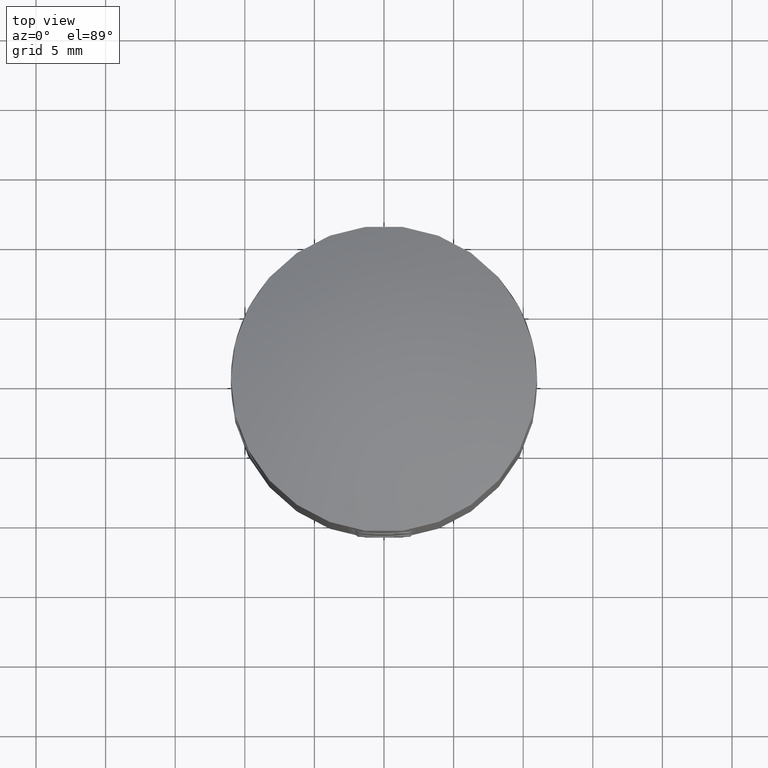
[diagram: clean part render]
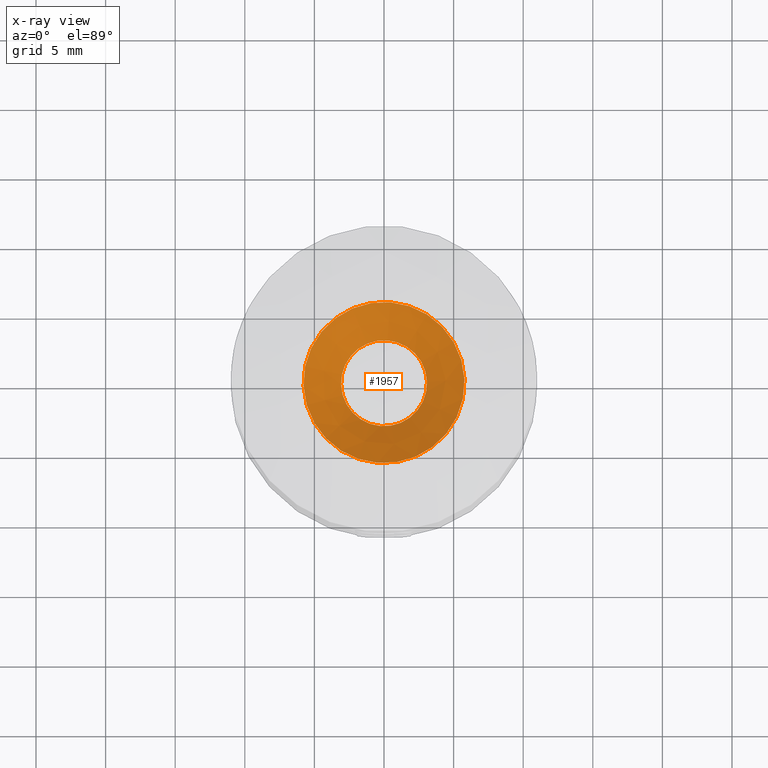
[diagram: x-ray — body ghosted, one internal face saturated and labeled with its STEP entity id]
A machine part, top view, then the same camera in x-ray: the body is ghosted and one INTERNAL B-rep face — a face not visible from any outside direction — is saturated and labeled: STEP entity #1957.
In plain terms, the highlighted conical surface has half-angle 45 deg.
Its self-contained STEP definition (entity closure, byte-faithful):
#702 = DIRECTION ( 'NONE',  ( -1.000000000000000000, -0.0000000000000000000, -0.0000000000000000000 ) ) ;
#1702 = CARTESIAN_POINT ( 'NONE',  ( 0.5150000000000132200, 0.0000000000000000000, 5.785000000000000100 ) ) ;
#1957 = ADVANCED_FACE ( 'NONE', ( #15843, #20037 ), #13238, .T. ) ;
#2323 = DIRECTION ( 'NONE',  ( -1.000000000000000000, -0.0000000000000000000, -0.0000000000000000000 ) ) ;
#3271 = AXIS2_PLACEMENT_3D ( 'NONE', #7138, #20512, #13936 ) ;
#4988 = CARTESIAN_POINT ( 'NONE',  ( 3.212132034355964700, 0.0000000000000000000, 3.087867965644036400 ) ) ;
#5001 = VERTEX_POINT ( 'NONE', #4988 ) ;
#5769 = VERTEX_POINT ( 'NONE', #1702 ) ;
#5963 = ORIENTED_EDGE ( 'NONE', *, *, #14712, .F. ) ;
#7138 = CARTESIAN_POINT ( 'NONE',  ( 3.212132034355964700, 0.0000000000000000000, 0.0000000000000000000 ) ) ;
#7231 = DIRECTION ( 'NONE',  ( 0.0000000000000000000, 0.0000000000000000000, 1.000000000000000000 ) ) ;
#10576 = DIRECTION ( 'NONE',  ( 0.0000000000000000000, 0.0000000000000000000, 1.000000000000000000 ) ) ;
#11580 = ORIENTED_EDGE ( 'NONE', *, *, #13439, .T. ) ;
#12010 = EDGE_LOOP ( 'NONE', ( #5963 ) ) ;
#12272 = CARTESIAN_POINT ( 'NONE',  ( 0.5150000000000132200, 0.0000000000000000000, 0.0000000000000000000 ) ) ;
#13238 = CONICAL_SURFACE ( 'NONE', #20281, 5.785000000000000100, 0.7853981633974503900 ) ;
#13439 = EDGE_CURVE ( 'NONE', #5001, #5001, #17963, .T. ) ;
#13936 = DIRECTION ( 'NONE',  ( 0.0000000000000000000, 0.0000000000000000000, 1.000000000000000000 ) ) ;
#13955 = CARTESIAN_POINT ( 'NONE',  ( 0.5150000000000132200, 0.0000000000000000000, 0.0000000000000000000 ) ) ;
#14712 = EDGE_CURVE ( 'NONE', #5769, #5769, #20070, .T. ) ;
#15843 = FACE_BOUND ( 'NONE', #18529, .T. ) ;
#17963 = CIRCLE ( 'NONE', #3271, 3.087867965644036400 ) ;
#18116 = AXIS2_PLACEMENT_3D ( 'NONE', #13955, #2323, #7231 ) ;
#18529 = EDGE_LOOP ( 'NONE', ( #11580 ) ) ;
#20037 = FACE_OUTER_BOUND ( 'NONE', #12010, .T. ) ;
#20070 = CIRCLE ( 'NONE', #18116, 5.785000000000000100 ) ;
#20281 = AXIS2_PLACEMENT_3D ( 'NONE', #12272, #702, #10576 ) ;
#20512 = DIRECTION ( 'NONE',  ( -1.000000000000000000, -0.0000000000000000000, -0.0000000000000000000 ) ) ;